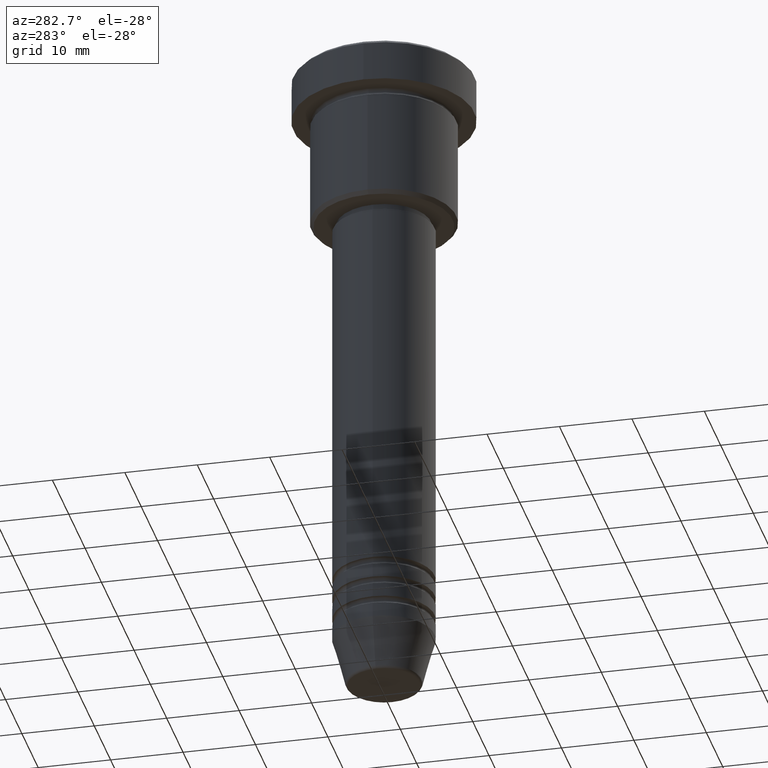
[diagram: clean part render]
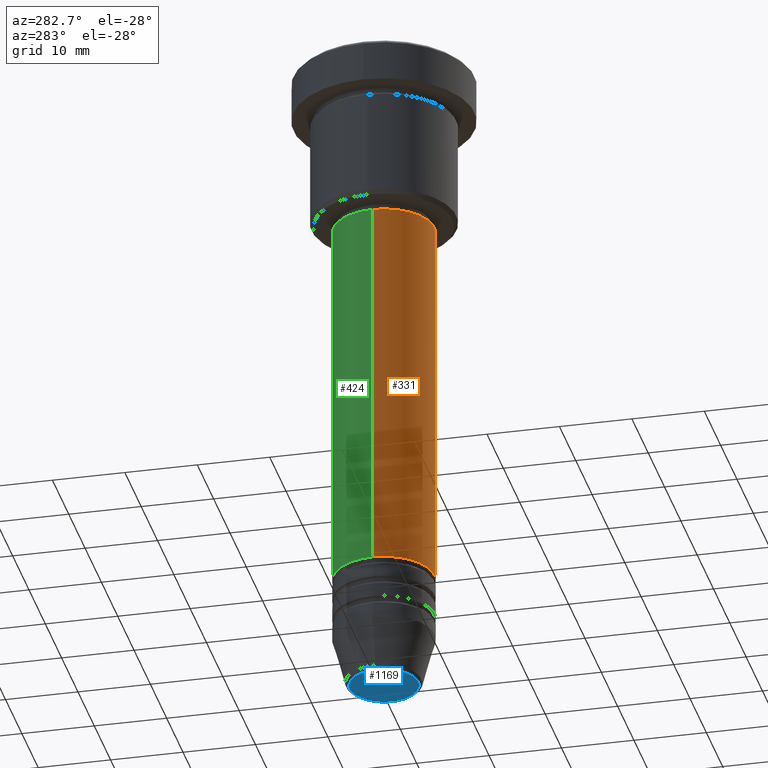
[diagram: same view with three faces highlighted in distinct colors, each labeled with its STEP entity id]
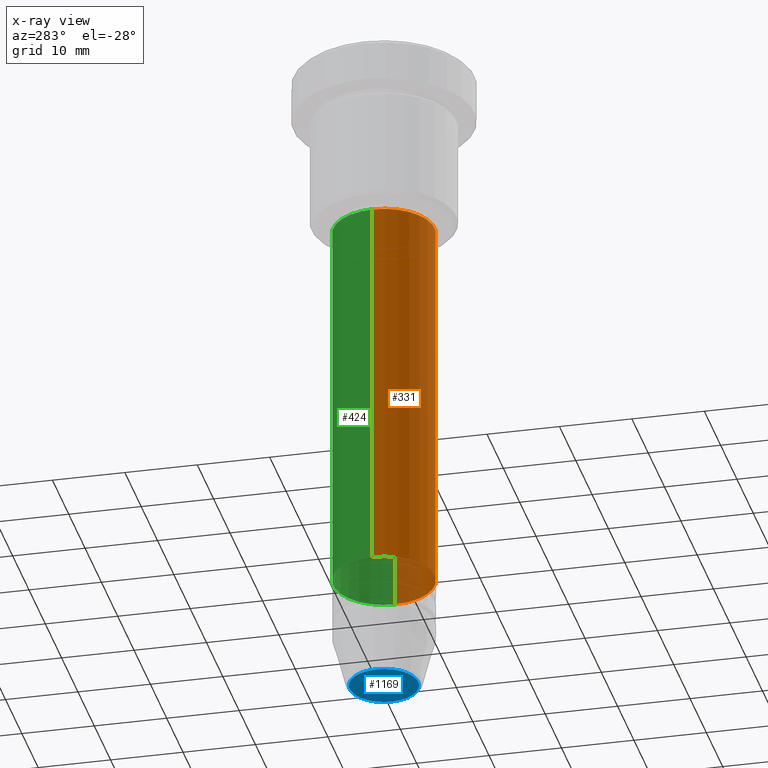
[diagram: x-ray of the same camera — body ghosted, the three highlighted faces saturated]
A machine part, auxiliary view with three faces highlighted in distinct colors.
The next image is the same camera in x-ray (body ghosted, the three faces saturated) — at least one of them is partly hidden behind the body in this view.
Their STEP definitions:

[orange] entity #331 — the highlighted cylindrical surface (partial cylindrical patch) has radius 7 mm, axis along (-0, -0, 1).
#45 = LINE ( 'NONE', #1052, #340 ) ;
#99 = CIRCLE ( 'NONE', #283, 7.000000000000000000 ) ;
#129 = CIRCLE ( 'NONE', #771, 7.000000000000000000 ) ;
#132 = DIRECTION ( 'NONE',  ( -0.000000000000000000, -0.000000000000000000, 1.000000000000000000 ) ) ;
#140 = EDGE_CURVE ( 'NONE', #391, #660, #129, .T. ) ;
#190 = EDGE_CURVE ( 'NONE', #391, #421, #1033, .T. ) ;
#244 = EDGE_LOOP ( 'NONE', ( #1076, #662, #559, #337 ) ) ;
#247 = DIRECTION ( 'NONE',  ( -0.000000000000000000, -0.000000000000000000, 1.000000000000000000 ) ) ;
#258 = VECTOR ( 'NONE', #598, 1000.000000000000000 ) ;
#283 = AXIS2_PLACEMENT_3D ( 'NONE', #1044, #132, #942 ) ;
#311 = CARTESIAN_POINT ( 'NONE',  ( -7.000000000000000000, 8.572527594031473190E-16, -23.00000000000000000 ) ) ;
#331 = ADVANCED_FACE ( 'NONE', ( #887 ), #693, .T. ) ;
#337 = ORIENTED_EDGE ( 'NONE', *, *, #1090, .F. ) ;
#340 = VECTOR ( 'NONE', #963, 1000.000000000000000 ) ;
#351 = CARTESIAN_POINT ( 'NONE',  ( -7.000000000000000000, 8.572527594031473190E-16, -75.99999999999997158 ) ) ;
#391 = VERTEX_POINT ( 'NONE', #351 ) ;
#421 = VERTEX_POINT ( 'NONE', #311 ) ;
#456 = DIRECTION ( 'NONE',  ( -0.000000000000000000, -0.000000000000000000, 1.000000000000000000 ) ) ;
#504 = VERTEX_POINT ( 'NONE', #850 ) ;
#509 = CARTESIAN_POINT ( 'NONE',  ( 7.000000000000000000, 0.000000000000000000, -75.99999999999997158 ) ) ;
#559 = ORIENTED_EDGE ( 'NONE', *, *, #1150, .T. ) ;
#598 = DIRECTION ( 'NONE',  ( -0.000000000000000000, -0.000000000000000000, 1.000000000000000000 ) ) ;
#604 = DIRECTION ( 'NONE',  ( 1.000000000000000000, 0.000000000000000000, 0.000000000000000000 ) ) ;
#660 = VERTEX_POINT ( 'NONE', #509 ) ;
#662 = ORIENTED_EDGE ( 'NONE', *, *, #140, .T. ) ;
#693 = CYLINDRICAL_SURFACE ( 'NONE', #872, 7.000000000000000000 ) ;
#771 = AXIS2_PLACEMENT_3D ( 'NONE', #999, #456, #1170 ) ;
#782 = CARTESIAN_POINT ( 'NONE',  ( 0.000000000000000000, 0.000000000000000000, 0.000000000000000000 ) ) ;
#850 = CARTESIAN_POINT ( 'NONE',  ( 7.000000000000000000, 0.000000000000000000, -23.00000000000000000 ) ) ;
#872 = AXIS2_PLACEMENT_3D ( 'NONE', #782, #247, #604 ) ;
#887 = FACE_OUTER_BOUND ( 'NONE', #244, .T. ) ;
#942 = DIRECTION ( 'NONE',  ( 1.000000000000000000, 0.000000000000000000, 0.000000000000000000 ) ) ;
#963 = DIRECTION ( 'NONE',  ( -0.000000000000000000, -0.000000000000000000, 1.000000000000000000 ) ) ;
#999 = CARTESIAN_POINT ( 'NONE',  ( 0.000000000000000000, 0.000000000000000000, -75.99999999999997158 ) ) ;
#1033 = LINE ( 'NONE', #1148, #258 ) ;
#1044 = CARTESIAN_POINT ( 'NONE',  ( 0.000000000000000000, 0.000000000000000000, -23.00000000000000000 ) ) ;
#1052 = CARTESIAN_POINT ( 'NONE',  ( 7.000000000000000000, 0.000000000000000000, 0.000000000000000000 ) ) ;
#1076 = ORIENTED_EDGE ( 'NONE', *, *, #190, .F. ) ;
#1090 = EDGE_CURVE ( 'NONE', #421, #504, #99, .T. ) ;
#1148 = CARTESIAN_POINT ( 'NONE',  ( -7.000000000000000000, 8.572527594031473190E-16, 0.000000000000000000 ) ) ;
#1150 = EDGE_CURVE ( 'NONE', #660, #504, #45, .T. ) ;
#1170 = DIRECTION ( 'NONE',  ( 1.000000000000000000, 0.000000000000000000, 0.000000000000000000 ) ) ;

[blue] entity #1169 — the highlighted planar face has unit normal (0, -0, 1).
#61 = ORIENTED_EDGE ( 'NONE', *, *, #648, .T. ) ;
#63 = DIRECTION ( 'NONE',  ( 0.000000000000000000, -0.000000000000000000, 1.000000000000000000 ) ) ;
#86 = EDGE_LOOP ( 'NONE', ( #61, #674 ) ) ;
#117 = VERTEX_POINT ( 'NONE', #588 ) ;
#150 = AXIS2_PLACEMENT_3D ( 'NONE', #946, #314, #226 ) ;
#156 = DIRECTION ( 'NONE',  ( 0.000000000000000000, 0.000000000000000000, -1.000000000000000000 ) ) ;
#158 = EDGE_CURVE ( 'NONE', #117, #747, #716, .T. ) ;
#226 = DIRECTION ( 'NONE',  ( 1.000000000000000000, 0.000000000000000000, 0.000000000000000000 ) ) ;
#314 = DIRECTION ( 'NONE',  ( 0.000000000000000000, 0.000000000000000000, -1.000000000000000000 ) ) ;
#334 = PLANE ( 'NONE',  #1048 ) ;
#432 = DIRECTION ( 'NONE',  ( 1.000000000000000000, 0.000000000000000000, 0.000000000000000000 ) ) ;
#434 = CARTESIAN_POINT ( 'NONE',  ( 4.740692158992654726, 0.000000000000000000, -92.00000000000000000 ) ) ;
#511 = CIRCLE ( 'NONE', #150, 4.740692158992654726 ) ;
#515 = CARTESIAN_POINT ( 'NONE',  ( 0.000000000000000000, 0.000000000000000000, -92.00000000000000000 ) ) ;
#588 = CARTESIAN_POINT ( 'NONE',  ( -4.740692158992654726, 6.101402971097975816E-16, -92.00000000000000000 ) ) ;
#648 = EDGE_CURVE ( 'NONE', #747, #117, #511, .T. ) ;
#674 = ORIENTED_EDGE ( 'NONE', *, *, #158, .T. ) ;
#716 = CIRCLE ( 'NONE', #731, 4.740692158992654726 ) ;
#731 = AXIS2_PLACEMENT_3D ( 'NONE', #1157, #156, #925 ) ;
#747 = VERTEX_POINT ( 'NONE', #434 ) ;
#783 = FACE_OUTER_BOUND ( 'NONE', #86, .T. ) ;
#925 = DIRECTION ( 'NONE',  ( 1.000000000000000000, 0.000000000000000000, 0.000000000000000000 ) ) ;
#946 = CARTESIAN_POINT ( 'NONE',  ( 0.000000000000000000, 0.000000000000000000, -92.00000000000000000 ) ) ;
#1048 = AXIS2_PLACEMENT_3D ( 'NONE', #515, #63, #432 ) ;
#1157 = CARTESIAN_POINT ( 'NONE',  ( 0.000000000000000000, 0.000000000000000000, -92.00000000000000000 ) ) ;
#1169 = ADVANCED_FACE ( 'NONE', ( #783 ), #334, .F. ) ;

[green] entity #424 — the highlighted cylindrical surface (partial cylindrical patch) has radius 7 mm, axis along (-0, -0, 1).
#45 = LINE ( 'NONE', #1052, #340 ) ;
#50 = CARTESIAN_POINT ( 'NONE',  ( 0.000000000000000000, 0.000000000000000000, 0.000000000000000000 ) ) ;
#56 = EDGE_CURVE ( 'NONE', #660, #391, #601, .T. ) ;
#101 = DIRECTION ( 'NONE',  ( -0.000000000000000000, -0.000000000000000000, 1.000000000000000000 ) ) ;
#130 = AXIS2_PLACEMENT_3D ( 'NONE', #50, #593, #326 ) ;
#142 = CARTESIAN_POINT ( 'NONE',  ( 0.000000000000000000, 0.000000000000000000, -75.99999999999997158 ) ) ;
#147 = DIRECTION ( 'NONE',  ( 1.000000000000000000, 0.000000000000000000, 0.000000000000000000 ) ) ;
#190 = EDGE_CURVE ( 'NONE', #391, #421, #1033, .T. ) ;
#258 = VECTOR ( 'NONE', #598, 1000.000000000000000 ) ;
#299 = AXIS2_PLACEMENT_3D ( 'NONE', #382, #101, #550 ) ;
#311 = CARTESIAN_POINT ( 'NONE',  ( -7.000000000000000000, 8.572527594031473190E-16, -23.00000000000000000 ) ) ;
#317 = ORIENTED_EDGE ( 'NONE', *, *, #1150, .F. ) ;
#326 = DIRECTION ( 'NONE',  ( 1.000000000000000000, 0.000000000000000000, 0.000000000000000000 ) ) ;
#327 = DIRECTION ( 'NONE',  ( -0.000000000000000000, -0.000000000000000000, 1.000000000000000000 ) ) ;
#340 = VECTOR ( 'NONE', #963, 1000.000000000000000 ) ;
#351 = CARTESIAN_POINT ( 'NONE',  ( -7.000000000000000000, 8.572527594031473190E-16, -75.99999999999997158 ) ) ;
#382 = CARTESIAN_POINT ( 'NONE',  ( 0.000000000000000000, 0.000000000000000000, -23.00000000000000000 ) ) ;
#391 = VERTEX_POINT ( 'NONE', #351 ) ;
#417 = EDGE_LOOP ( 'NONE', ( #1109, #983, #842, #317 ) ) ;
#421 = VERTEX_POINT ( 'NONE', #311 ) ;
#424 = ADVANCED_FACE ( 'NONE', ( #484 ), #1058, .T. ) ;
#484 = FACE_OUTER_BOUND ( 'NONE', #417, .T. ) ;
#504 = VERTEX_POINT ( 'NONE', #850 ) ;
#509 = CARTESIAN_POINT ( 'NONE',  ( 7.000000000000000000, 0.000000000000000000, -75.99999999999997158 ) ) ;
#550 = DIRECTION ( 'NONE',  ( 1.000000000000000000, 0.000000000000000000, 0.000000000000000000 ) ) ;
#593 = DIRECTION ( 'NONE',  ( -0.000000000000000000, -0.000000000000000000, 1.000000000000000000 ) ) ;
#598 = DIRECTION ( 'NONE',  ( -0.000000000000000000, -0.000000000000000000, 1.000000000000000000 ) ) ;
#601 = CIRCLE ( 'NONE', #904, 7.000000000000000000 ) ;
#660 = VERTEX_POINT ( 'NONE', #509 ) ;
#702 = CIRCLE ( 'NONE', #299, 7.000000000000000000 ) ;
#842 = ORIENTED_EDGE ( 'NONE', *, *, #1013, .F. ) ;
#850 = CARTESIAN_POINT ( 'NONE',  ( 7.000000000000000000, 0.000000000000000000, -23.00000000000000000 ) ) ;
#904 = AXIS2_PLACEMENT_3D ( 'NONE', #142, #327, #147 ) ;
#963 = DIRECTION ( 'NONE',  ( -0.000000000000000000, -0.000000000000000000, 1.000000000000000000 ) ) ;
#983 = ORIENTED_EDGE ( 'NONE', *, *, #190, .T. ) ;
#1013 = EDGE_CURVE ( 'NONE', #504, #421, #702, .T. ) ;
#1033 = LINE ( 'NONE', #1148, #258 ) ;
#1052 = CARTESIAN_POINT ( 'NONE',  ( 7.000000000000000000, 0.000000000000000000, 0.000000000000000000 ) ) ;
#1058 = CYLINDRICAL_SURFACE ( 'NONE', #130, 7.000000000000000000 ) ;
#1109 = ORIENTED_EDGE ( 'NONE', *, *, #56, .T. ) ;
#1148 = CARTESIAN_POINT ( 'NONE',  ( -7.000000000000000000, 8.572527594031473190E-16, 0.000000000000000000 ) ) ;
#1150 = EDGE_CURVE ( 'NONE', #660, #504, #45, .T. ) ;